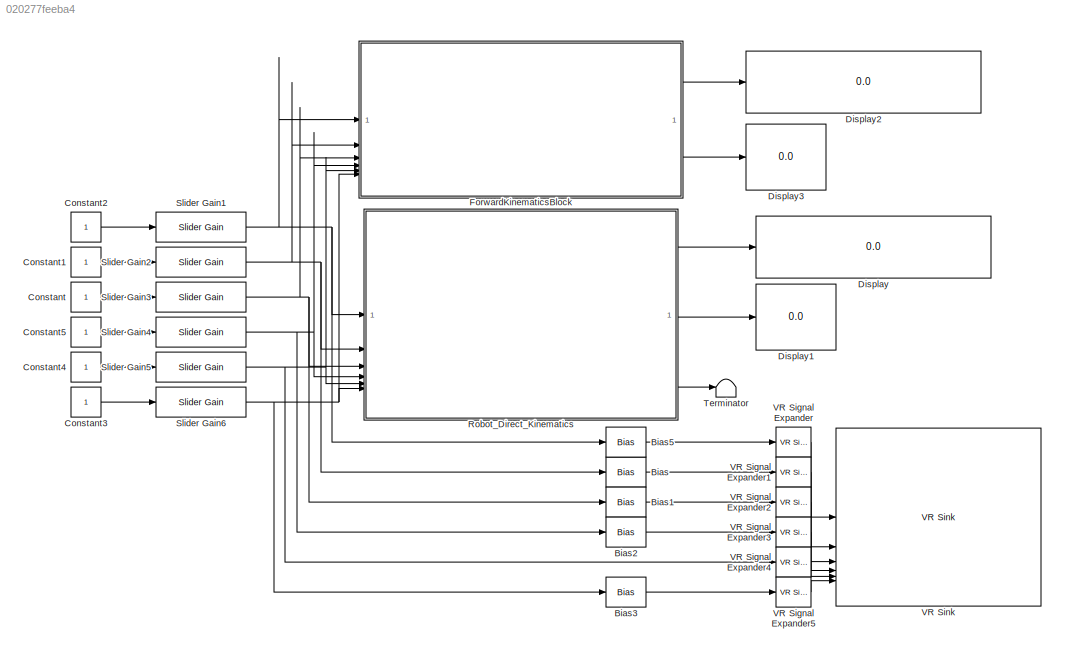
MODEL slx_020277feeba4
KIND model
CONFIG AbsTol = auto
CONFIG EnableMultiTasking = on
CONFIG FixedStep = auto
CONFIG MaxStep = auto
CONFIG MinStep = auto
CONFIG RelTol = 1e-3
CONFIG SampleTimeConstraint = Unconstrained
CONFIG SolverName = VariableStepAuto
CONFIG StartTime = 0.0
CONFIG StopTime = inf
BLOCK [Bias] Bias
  Bias = pi/2
  SaturateOnIntegerOverflow = off
BLOCK [Bias] Bias1
  Bias = pi/2
  SaturateOnIntegerOverflow = off
BLOCK [Bias] Bias2
  Bias = -pi/2
  SaturateOnIntegerOverflow = off
BLOCK [Bias] Bias3
  Bias = -pi/2
  SaturateOnIntegerOverflow = off
BLOCK [Bias] Bias5
  Bias = pi/2
  SaturateOnIntegerOverflow = off
BLOCK [Constant] Constant
BLOCK [Constant] Constant1
BLOCK [Constant] Constant2
BLOCK [Constant] Constant3
BLOCK [Constant] Constant4
BLOCK [Constant] Constant5
BLOCK [Display] Display
  Decimation = 1
BLOCK [Display] Display1
  Decimation = 1
BLOCK [Display] Display2
  Decimation = 1
BLOCK [Display] Display3
  Decimation = 1
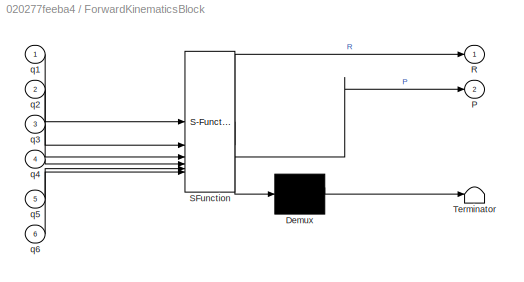
BLOCK [SubSystem] ForwardKinematicsBlock
  ErrorFcn = Stateflow.Translate.translate
  PermitHierarchicalResolution = ExplicitOnly
  SFBlockType = MATLAB Function
  TreatAsAtomicUnit = on
BLOCK [Demux] ForwardKinematicsBlock/ Demux 
  Outputs = 1
BLOCK [S-Function] ForwardKinematicsBlock/ SFunction 
  EnableBusSupport = on
  FunctionName = sf_sfun
  PortCounts = [6 3]
  SFcnIsStateOwnerBlock = off
  SFunctionDeploymentMode = off
  Tag = Stateflow S-Function 1
BLOCK [Terminator] ForwardKinematicsBlock/ Terminator 
BLOCK [Outport] ForwardKinematicsBlock/P
  Port = 2
BLOCK [Outport] ForwardKinematicsBlock/R
BLOCK [Inport] ForwardKinematicsBlock/q1
BLOCK [Inport] ForwardKinematicsBlock/q2
  Port = 2
BLOCK [Inport] ForwardKinematicsBlock/q3
  Port = 3
BLOCK [Inport] ForwardKinematicsBlock/q4
  Port = 4
BLOCK [Inport] ForwardKinematicsBlock/q5
  Port = 5
BLOCK [Inport] ForwardKinematicsBlock/q6
  Port = 6
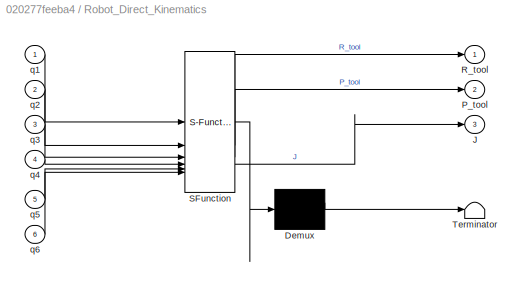
BLOCK [SubSystem] Robot_Direct_Kinematics
  ErrorFcn = Stateflow.Translate.translate
  PermitHierarchicalResolution = ExplicitOnly
  SFBlockType = MATLAB Function
  TreatAsAtomicUnit = on
BLOCK [Demux] Robot_Direct_Kinematics/ Demux 
  Outputs = 1
BLOCK [S-Function] Robot_Direct_Kinematics/ SFunction 
  EnableBusSupport = on
  FunctionName = sf_sfun
  PortCounts = [6 4]
  SFcnIsStateOwnerBlock = off
  SFunctionDeploymentMode = off
  Tag = Stateflow S-Function 2
BLOCK [Terminator] Robot_Direct_Kinematics/ Terminator 
BLOCK [Outport] Robot_Direct_Kinematics/J
  Port = 3
BLOCK [Outport] Robot_Direct_Kinematics/P_tool
  Port = 2
BLOCK [Outport] Robot_Direct_Kinematics/R_tool
BLOCK [Inport] Robot_Direct_Kinematics/q1
BLOCK [Inport] Robot_Direct_Kinematics/q2
  Port = 2
BLOCK [Inport] Robot_Direct_Kinematics/q3
  Port = 3
BLOCK [Inport] Robot_Direct_Kinematics/q4
  Port = 4
BLOCK [Inport] Robot_Direct_Kinematics/q5
  Port = 5
BLOCK [Inport] Robot_Direct_Kinematics/q6
  Port = 6
BLOCK [Reference] Slider Gain1  REF=simulink/Math
Operations/Slider
Gain
  SourceBlock = simulink/Math\nOperations/Slider\nGain
  SourceType = Slider Gain
BLOCK [Reference] Slider Gain2  REF=simulink/Math
Operations/Slider
Gain
  SourceBlock = simulink/Math\nOperations/Slider\nGain
  SourceType = Slider Gain
BLOCK [Reference] Slider Gain3  REF=simulink/Math
Operations/Slider
Gain
  SourceBlock = simulink/Math\nOperations/Slider\nGain
  SourceType = Slider Gain
BLOCK [Reference] Slider Gain4  REF=simulink/Math
Operations/Slider
Gain
  SourceBlock = simulink/Math\nOperations/Slider\nGain
  SourceType = Slider Gain
BLOCK [Reference] Slider Gain5  REF=simulink/Math
Operations/Slider
Gain
  SourceBlock = simulink/Math\nOperations/Slider\nGain
  SourceType = Slider Gain
BLOCK [Reference] Slider Gain6  REF=simulink/Math
Operations/Slider
Gain
  SourceBlock = simulink/Math\nOperations/Slider\nGain
  SourceType = Slider Gain
BLOCK [Terminator] Terminator
BLOCK [Reference] VR Signal Expander  REF=vrlib/VR Signal Expander
  SourceBlock = vrlib/VR Signal Expander
  SourceType = VR Signal Expander
BLOCK [Reference] VR Signal Expander1  REF=vrlib/VR Signal Expander
  SourceBlock = vrlib/VR Signal Expander
  SourceType = VR Signal Expander
BLOCK [Reference] VR Signal Expander2  REF=vrlib/VR Signal Expander
  SourceBlock = vrlib/VR Signal Expander
  SourceType = VR Signal Expander
BLOCK [Reference] VR Signal Expander3  REF=vrlib/VR Signal Expander
  SourceBlock = vrlib/VR Signal Expander
  SourceType = VR Signal Expander
BLOCK [Reference] VR Signal Expander4  REF=vrlib/VR Signal Expander
  SourceBlock = vrlib/VR Signal Expander
  SourceType = VR Signal Expander
BLOCK [Reference] VR Signal Expander5  REF=vrlib/VR Signal Expander
  SourceBlock = vrlib/VR Signal Expander
  SourceType = VR Signal Expander
BLOCK [Reference] VR Sink  REF=vrlib/VR Sink
  InstantiateOnLoad = on
  SourceBlock = vrlib/VR Sink
  SourceType = Virtual Reality Sink
LINE Bias1:1 -> VR Signal Expander2:1
LINE Bias2:1 -> VR Signal Expander3:1
LINE Bias3:1 -> VR Signal Expander5:1
LINE Bias5:1 -> VR Signal Expander:1
LINE Bias:1 -> VR Signal Expander1:1
LINE Constant1:1 -> Slider Gain2:1
LINE Constant2:1 -> Slider Gain1:1
LINE Constant3:1 -> Slider Gain6:1
LINE Constant4:1 -> Slider Gain5:1
LINE Constant5:1 -> Slider Gain4:1
LINE Constant:1 -> Slider Gain3:1
LINE ForwardKinematicsBlock:1 -> Display2:1
LINE ForwardKinematicsBlock:2 -> Display3:1
LINE Robot_Direct_Kinematics:1 -> Display:1
LINE Robot_Direct_Kinematics:2 -> Display1:1
LINE Robot_Direct_Kinematics:3 -> Terminator:1
NET Slider Gain1:1 -> Bias5:1, ForwardKinematicsBlock:1, Robot_Direct_Kinematics:1
NET Slider Gain2:1 -> Bias:1, ForwardKinematicsBlock:2, Robot_Direct_Kinematics:2
NET Slider Gain3:1 -> Bias1:1, ForwardKinematicsBlock:3, Robot_Direct_Kinematics:3
NET Slider Gain4:1 -> Bias2:1, ForwardKinematicsBlock:4, Robot_Direct_Kinematics:4
NET Slider Gain5:1 -> ForwardKinematicsBlock:5, Robot_Direct_Kinematics:5, VR Signal Expander4:1
NET Slider Gain6:1 -> Bias3:1, ForwardKinematicsBlock:6, Robot_Direct_Kinematics:6
LINE VR Signal Expander1:1 -> VR Sink:2
LINE VR Signal Expander2:1 -> VR Sink:3
LINE VR Signal Expander3:1 -> VR Sink:4
LINE VR Signal Expander4:1 -> VR Sink:5
LINE VR Signal Expander5:1 -> VR Sink:6
LINE VR Signal Expander:1 -> VR Sink:1
note: NET lines group one-source signal fan-out (src -> all destinations, sorted); 1:1 wires keep LINE
CHART ForwardKinematicsBlock states=1 transitions=1
  STATE_LABEL 'eML_blk_kernel()'
  STATE_LABEL 'SCRIPT:\nfunction [R, P] = ForwardKinematics(q1, q2, q3, q4, q5, q6)\n\nDH = [ 0     q1  0     pi/2      pi/2;\n       0     q2  0    -pi/2      pi/2;\n       -0.4   q3  0     pi/2      pi/2;\n       0     q4  0.1   pi/2     -pi/2;\n       0.5   q5  0    -pi/2      0;\n       -0.1   q6  0     pi/2-pi/8 -pi/2;\n       0.15  0   0     0         0 ];\n\nT = eye(4);\n\nfor i = 1:size(DH,1)\n    d = DH(i,1);\n    the...<+432ch>'
CHART Robot_Direct_Kinematics states=1 transitions=1
  STATE_LABEL 'eML_blk_kernel()'
  STATE_LABEL 'SCRIPT:\nfunction [R_tool,P_tool,J] = Robot_Direct_Kinematics(q1,q2,q3,q4,q5,q6)\n%#codegen\n\n%    This function was generated by the Symbolic Math Toolbox version 24.2.\n%    24-May-2025 22:37:09\n\n% q1 = complex(q1);  % if required to enforce complex operations\n% q2 = complex(q2);  % if required to enforce complex operations\n% q3 = complex(q3);  % if required to enforce complex operations\n% q4 = comp...<+3608ch>'
CHART  states=0 transitions=0
CHART  states=0 transitions=0
